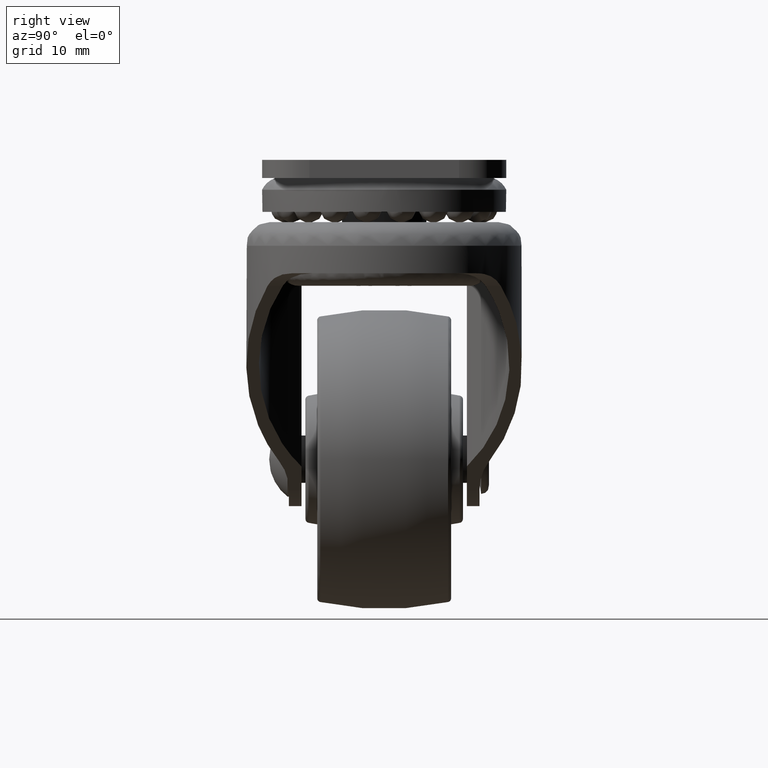
[diagram: clean part render]
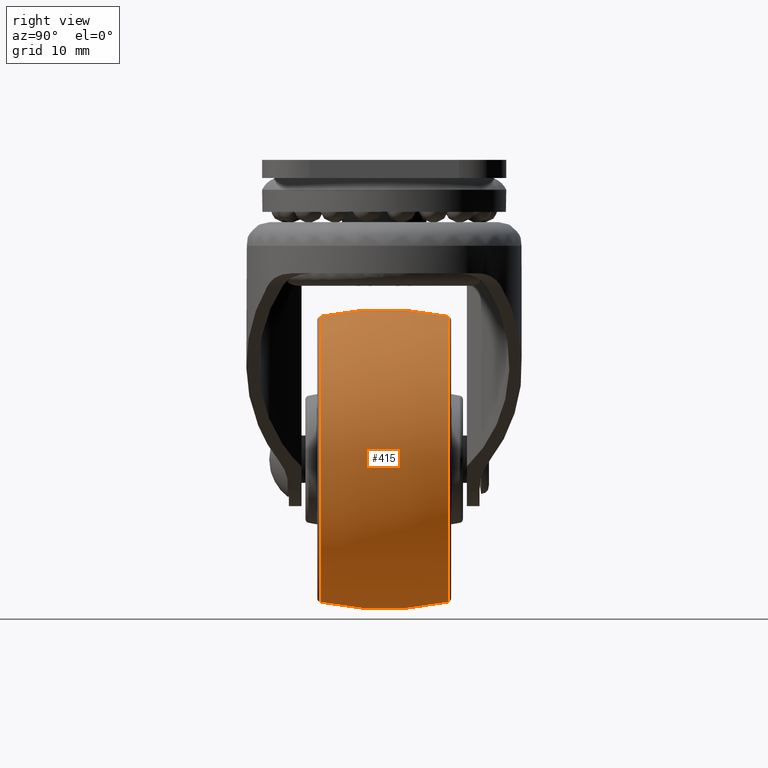
[diagram: same view with one face highlighted and labeled with its STEP entity id]
A machine part, right view. The second image highlights one B-rep face of the part: STEP entity #415.
In plain terms, the highlighted face is a freeform B-spline surface patch.
Its self-contained STEP definition (entity closure, byte-faithful):
#415=ADVANCED_FACE('',(#2402),#2401,.T.);
#2401=( BOUNDED_SURFACE() B_SPLINE_SURFACE( 2,2,((#5233,#5234,#5235,#5236,#5237),(#5238,#5239,#5240,#5241,#5242),(#5243,#5244,#5245,#5246,#5247)), .UNSPECIFIED.,.F.,.F.,.F.) B_SPLINE_SURFACE_WITH_KNOTS((3,3),(3,2,3),(-2.14985572891E-01,2.14985573187E-01),(3.14159265359E+00,4.71238898038E+00,6.28318530718E+00), .UNSPECIFIED. ) GEOMETRIC_REPRESENTATION_ITEM() RATIONAL_B_SPLINE_SURFACE(((1.00000000000E+00,7.07106781187E-01,1.00000000000E+00,7.07106781187E-01,1.00000000000E+00),(9.76979472060E-01,6.90828809774E-01,9.76979472060E-01,6.90828809774E-01,9.76979472060E-01),(1.00000000000E+00,7.07106781187E-01,1.00000000000E+00,7.07106781187E-01,1.00000000000E+00))) REPRESENTATION_ITEM('') SURFACE() );
#2402=FACE_OUTER_BOUND('',#5248,.T.);
#5233=CARTESIAN_POINT('',(-8.10666666681E+00,6.24910500713E-16,-1.81252199395E+01));
#5234=CARTESIAN_POINT('',(-8.10666666681E+00,-1.81252199395E+01,-1.81252199395E+01));
#5235=CARTESIAN_POINT('',(-8.10666666681E+00,-1.81252199395E+01,5.68907290219E-15));
#5236=CARTESIAN_POINT('',(-8.10666666681E+00,-1.81252199395E+01,1.81252199395E+01));
#5237=CARTESIAN_POINT('',(-8.10666666681E+00,5.06416240118E-15,1.81252199395E+01));
#5238=CARTESIAN_POINT('',(5.75186120955E-09,4.08134048002E-16,-1.98953924691E+01));
#5239=CARTESIAN_POINT('',(5.75186120955E-09,-1.98953924691E+01,-1.98953924691E+01));
#5240=CARTESIAN_POINT('',(5.75186120955E-09,-1.98953924691E+01,5.90584935490E-15));
#5241=CARTESIAN_POINT('',(5.75186120955E-09,-1.98953924691E+01,1.98953924691E+01));
#5242=CARTESIAN_POINT('',(5.75186120955E-09,5.28093885389E-15,1.98953924691E+01));
#5243=CARTESIAN_POINT('',(8.10666667779E+00,6.24910501007E-16,-1.81252199371E+01));
#5244=CARTESIAN_POINT('',(8.10666667779E+00,-1.81252199371E+01,-1.81252199371E+01));
#5245=CARTESIAN_POINT('',(8.10666667779E+00,-1.81252199371E+01,5.68907290189E-15));
#5246=CARTESIAN_POINT('',(8.10666667779E+00,-1.81252199371E+01,1.81252199371E+01));
#5247=CARTESIAN_POINT('',(8.10666667779E+00,5.06416240089E-15,1.81252199371E+01));
#5248=EDGE_LOOP('',(#6257,#6258,#6259,#6260));
#6257=ORIENTED_EDGE('',*,*,#6760,.T.);
#6258=ORIENTED_EDGE('',*,*,#6765,.F.);
#6259=ORIENTED_EDGE('',*,*,#6764,.F.);
#6260=ORIENTED_EDGE('',*,*,#6766,.T.);
#6760=EDGE_CURVE('',#10074,#10073,#10093,.T.);
#6764=EDGE_CURVE('',#10106,#10099,#10119,.T.);
#6765=EDGE_CURVE('',#10099,#10073,#10125,.T.);
#6766=EDGE_CURVE('',#10106,#10074,#10131,.T.);
#10073=VERTEX_POINT('',#13970);
#10074=VERTEX_POINT('',#13971);
#10093=CIRCLE('',#13986,1.81252199371E+01);
#10099=VERTEX_POINT('',#13987);
#10106=VERTEX_POINT('',#13991);
#10119=CIRCLE('',#14003,1.81252197360E+01);
#10125=(BOUNDED_CURVE() B_SPLINE_CURVE(2,(#14004,#14005,#14006),.UNSPECIFIED.,.F.,.F.) B_SPLINE_CURVE_WITH_KNOTS((3,3),(-2.14985572891E-01,2.14985573187E-01),.UNSPECIFIED.) CURVE() GEOMETRIC_REPRESENTATION_ITEM() RATIONAL_B_SPLINE_CURVE((1.00000000000E+00,9.76979472060E-01,1.00000000000E+00)) REPRESENTATION_ITEM('') );
#10131=(BOUNDED_CURVE() B_SPLINE_CURVE(2,(#14007,#14008,#14009),.UNSPECIFIED.,.F.,.F.) B_SPLINE_CURVE_WITH_KNOTS((3,3),(-2.14985572891E-01,2.14985573187E-01),.UNSPECIFIED.) CURVE() GEOMETRIC_REPRESENTATION_ITEM() RATIONAL_B_SPLINE_CURVE((1.00000000000E+00,9.76979472060E-01,1.00000000000E+00)) REPRESENTATION_ITEM('') );
#13970=CARTESIAN_POINT('',(8.10666667779E+00,-3.40386384287E-15,1.81252199371E+01));
#13971=CARTESIAN_POINT('',(8.10666667779E+00,-5.92118946467E-16,-1.81252199371E+01));
#13983=CARTESIAN_POINT('',(8.10666667779E+00,0.00000000000E+00,0.00000000000E+00));
#13984=DIRECTION('',(-1.00000000000E+00,0.00000000000E+00,0.00000000000E+00));
#13985=DIRECTION('',(-0.00000000000E+00,-6.53364702354E-17,1.00000000000E+00));
#13986=AXIS2_PLACEMENT_3D('',#13983,#13984,#13985);
#13987=CARTESIAN_POINT('',(-8.10666666681E+00,0.00000000000E+00,1.81252197360E+01));
#13991=CARTESIAN_POINT('',(-8.10666666681E+00,1.18423789293E-15,-1.81252197360E+01));
#14000=CARTESIAN_POINT('',(-8.10666666681E+00,0.00000000000E+00,0.00000000000E+00));
#14001=DIRECTION('',(-1.00000000000E+00,0.00000000000E+00,0.00000000000E+00));
#14002=DIRECTION('',(0.00000000000E+00,-1.22460635382E-16,1.00000000000E+00));
#14003=AXIS2_PLACEMENT_3D('',#14000,#14001,#14002);
#14004=CARTESIAN_POINT('',(-8.10666666681E+00,5.06416240118E-15,1.81252199395E+01));
#14005=CARTESIAN_POINT('',(5.75186120955E-09,5.28093885389E-15,1.98953924691E+01));
#14006=CARTESIAN_POINT('',(8.10666667779E+00,5.06416240089E-15,1.81252199371E+01));
#14007=CARTESIAN_POINT('',(-8.10666666681E+00,6.24910500713E-16,-1.81252199395E+01));
#14008=CARTESIAN_POINT('',(5.75186120955E-09,4.08134048002E-16,-1.98953924691E+01));
#14009=CARTESIAN_POINT('',(8.10666667779E+00,6.24910501007E-16,-1.81252199371E+01));